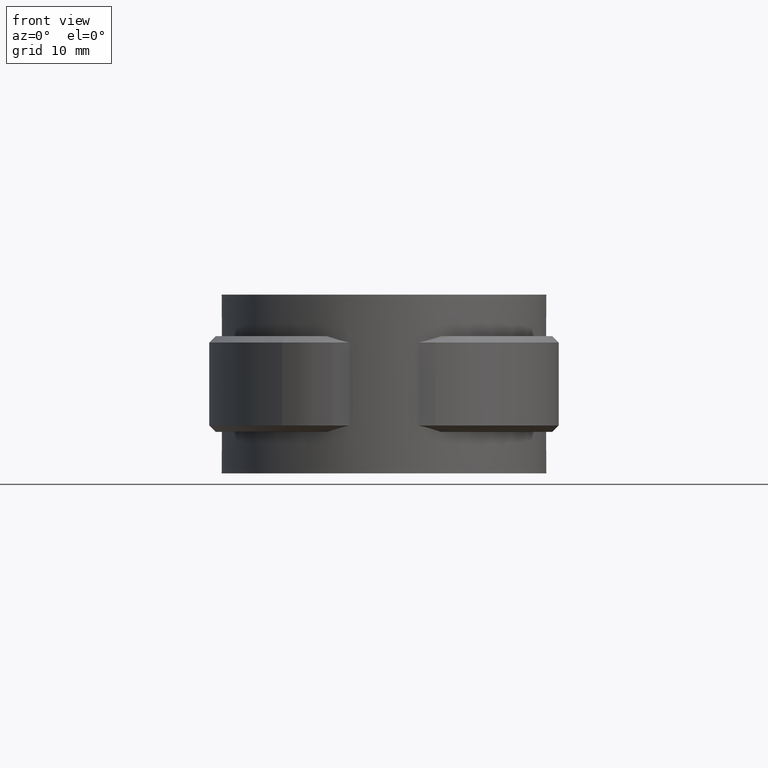
[diagram: clean part render]
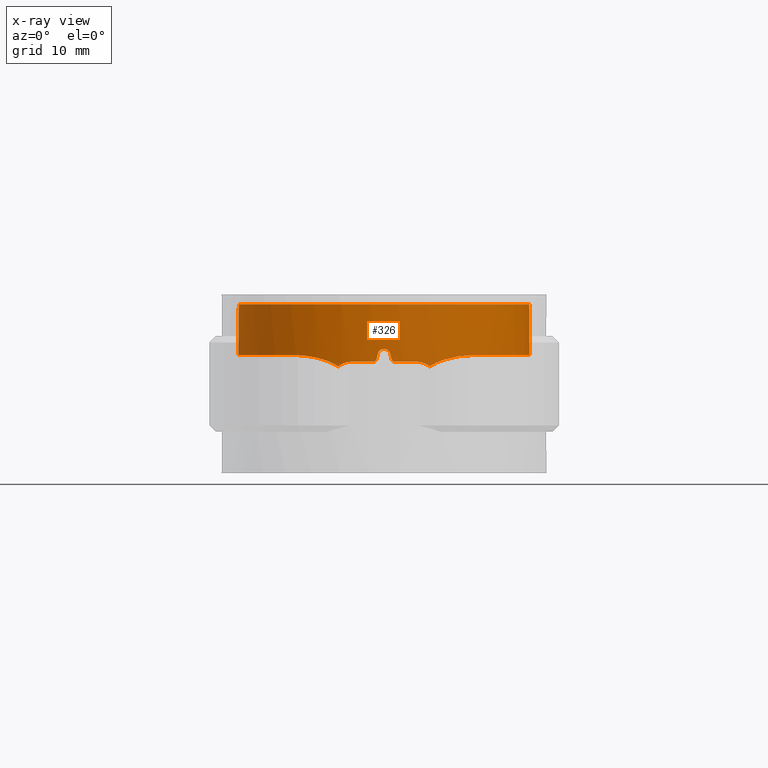
[diagram: x-ray — body ghosted, one internal face saturated and labeled with its STEP entity id]
A machine part, front view, then the same camera in x-ray: the body is ghosted and one INTERNAL B-rep face — a face not visible from any outside direction — is saturated and labeled: STEP entity #326.
In plain terms, the highlighted cylindrical surface (partial cylindrical patch) has radius 22.85 mm, axis along (0, 0, 1).
Its self-contained STEP definition (entity closure, byte-faithful):
#326 = ADVANCED_FACE( '', ( #546 ), #547, .F. );
#546 = FACE_OUTER_BOUND( '', #1200, .T. );
#547 = CYLINDRICAL_SURFACE( '', #1201, 22.8500000000000 );
#1200 = EDGE_LOOP( '', ( #2154, #2155, #2156, #2157, #2158, #2159, #2160, #2161, #2162, #2163, #2164, #2165, #2166, #2167, #2168, #2169 ) );
#1201 = AXIS2_PLACEMENT_3D( '', #2170, #2171, #2172 );
#2154 = ORIENTED_EDGE( '', *, *, #4932, .T. );
#2155 = ORIENTED_EDGE( '', *, *, #4901, .T. );
#2156 = ORIENTED_EDGE( '', *, *, #4905, .T. );
#2157 = ORIENTED_EDGE( '', *, *, #4936, .T. );
#2158 = ORIENTED_EDGE( '', *, *, #4937, .T. );
#2159 = ORIENTED_EDGE( '', *, *, #4938, .T. );
#2160 = ORIENTED_EDGE( '', *, *, #4939, .T. );
#2161 = ORIENTED_EDGE( '', *, *, #4940, .T. );
#2162 = ORIENTED_EDGE( '', *, *, #4941, .T. );
#2163 = ORIENTED_EDGE( '', *, *, #4942, .T. );
#2164 = ORIENTED_EDGE( '', *, *, #4933, .T. );
#2165 = ORIENTED_EDGE( '', *, *, #4925, .T. );
#2166 = ORIENTED_EDGE( '', *, *, #4943, .F. );
#2167 = ORIENTED_EDGE( '', *, *, #4892, .T. );
#2168 = ORIENTED_EDGE( '', *, *, #4944, .T. );
#2169 = ORIENTED_EDGE( '', *, *, #4921, .T. );
#2170 = CARTESIAN_POINT( '', ( 0.000000000000000, 0.000000000000000, 0.000000000000000 ) );
#2171 = DIRECTION( '', ( 0.000000000000000, 0.000000000000000, 1.00000000000000 ) );
#2172 = DIRECTION( '', ( 1.00000000000000, -6.12303176911189E-017, 0.000000000000000 ) );
#4892 = EDGE_CURVE( '', #5478, #5476, #5479, .T. );
#4901 = EDGE_CURVE( '', #5495, #5493, #5496, .T. );
#4905 = EDGE_CURVE( '', #5493, #5500, #5502, .T. );
#4921 = EDGE_CURVE( '', #5530, #5528, #5531, .T. );
#4925 = EDGE_CURVE( '', #5537, #5538, #5539, .T. );
#4932 = EDGE_CURVE( '', #5528, #5495, #5550, .T. );
#4933 = EDGE_CURVE( '', #5551, #5537, #5552, .T. );
#4936 = EDGE_CURVE( '', #5500, #5556, #5557, .T. );
#4937 = EDGE_CURVE( '', #5556, #5558, #5559, .T. );
#4938 = EDGE_CURVE( '', #5558, #5560, #5561, .T. );
#4939 = EDGE_CURVE( '', #5560, #5562, #5563, .T. );
#4940 = EDGE_CURVE( '', #5562, #5564, #5565, .T. );
#4941 = EDGE_CURVE( '', #5564, #5566, #5567, .T. );
#4942 = EDGE_CURVE( '', #5566, #5551, #5568, .T. );
#4943 = EDGE_CURVE( '', #5478, #5538, #5569, .T. );
#4944 = EDGE_CURVE( '', #5476, #5530, #5570, .T. );
#5476 = VERTEX_POINT( '', #6562 );
#5478 = VERTEX_POINT( '', #6564 );
#5479 = CIRCLE( '', #6565, 22.8500000000000 );
#5493 = VERTEX_POINT( '', #6609 );
#5495 = VERTEX_POINT( '', #6612 );
#5496 = B_SPLINE_CURVE_WITH_KNOTS( '', 3, ( #6613, #6614, #6615, #6616, #6617, #6618, #6619, #6620, #6621, #6622 ), .UNSPECIFIED., .F., .F., ( 4, 2, 2, 2, 4 ), ( 0.00877637653112454, 0.00937660491941817, 0.00997683330771180, 0.0105770616960054, 0.0111772900842991 ), .UNSPECIFIED. );
#5500 = VERTEX_POINT( '', #6648 );
#5502 = CIRCLE( '', #6651, 22.8500000000000 );
#5528 = VERTEX_POINT( '', #6915 );
#5530 = VERTEX_POINT( '', #6923 );
#5531 = B_SPLINE_CURVE_WITH_KNOTS( '', 3, ( #6924, #6925, #6926, #6927, #6928, #6929, #6930, #6931, #6932, #6933, #6934, #6935, #6936, #6937, #6938, #6939, #6940, #6941, #6942, #6943, #6944, #6945, #6946, #6947, #6948, #6949, #6950, #6951, #6952, #6953, #6954, #6955, #6956, #6957, #6958, #6959, #6960, #6961, #6962, #6963, #6964, #6965, #6966, #6967 ), .UNSPECIFIED., .F., .F., ( 4, 2, 2, 2, 2, 2, 2, 2, 2, 2, 2, 2, 2, 2, 2, 2, 2, 2, 2, 2, 2, 4 ), ( 6.99289389267470E-018, 0.00317004307811013, 0.00634008615622026, 0.00792510769527532, 0.00951012923433038, 0.0126801723124405, 0.0142651938514956, 0.0158502153905506, 0.0190202584686607, 0.0221903015467709, 0.0237753230858259, 0.0253603446248810, 0.0285303877029911, 0.0301154092420462, 0.0317004307811013, 0.0348704738592114, 0.0380405169373215, 0.0396255384763766, 0.0412105600154316, 0.0443806030935418, 0.0475506461716519, 0.0507206892497620 ), .UNSPECIFIED. );
#5537 = VERTEX_POINT( '', #7003 );
#5538 = VERTEX_POINT( '', #7004 );
#5539 = B_SPLINE_CURVE_WITH_KNOTS( '', 3, ( #7005, #7006, #7007, #7008, #7009, #7010, #7011, #7012, #7013, #7014, #7015, #7016, #7017, #7018, #7019, #7020, #7021, #7022, #7023, #7024, #7025, #7026, #7027, #7028, #7029, #7030, #7031, #7032, #7033, #7034, #7035, #7036, #7037, #7038, #7039, #7040, #7041, #7042, #7043, #7044, #7045, #7046, #7047, #7048 ), .UNSPECIFIED., .F., .F., ( 4, 2, 2, 2, 2, 2, 2, 2, 2, 2, 2, 2, 2, 2, 2, 2, 2, 2, 2, 2, 2, 4 ), ( 9.81307786677359E-018, 0.00317004304630909, 0.00634008609261818, 0.00792510761577273, 0.00951012913892727, 0.0126801721852364, 0.0142651937083909, 0.0158502152315454, 0.0190202582778545, 0.0221903013241636, 0.0237753228473182, 0.0253603443704727, 0.0285303874167818, 0.0301154089399363, 0.0317004304630909, 0.0348704735093999, 0.0380405165557090, 0.0396255380788636, 0.0412105596020181, 0.0443806026483272, 0.0475506456946363, 0.0507206887409454 ), .UNSPECIFIED. );
#5550 = B_SPLINE_CURVE_WITH_KNOTS( '', 3, ( #7147, #7148, #7149, #7150, #7151, #7152, #7153, #7154, #7155, #7156 ), .UNSPECIFIED., .F., .F., ( 4, 2, 2, 2, 4 ), ( 4.90653893338680E-018, 0.00193685903663415, 0.00387371807326829, 0.00581057710990243, 0.00774743614653658 ), .UNSPECIFIED. );
#5551 = VERTEX_POINT( '', #7157 );
#5552 = B_SPLINE_CURVE_WITH_KNOTS( '', 3, ( #7158, #7159, #7160, #7161, #7162, #7163, #7164, #7165, #7166, #7167 ), .UNSPECIFIED., .F., .F., ( 4, 2, 2, 2, 4 ), ( 1.22770241732600E-005, 0.00193683946452196, 0.00386140190487065, 0.00578596434521935, 0.00771052678556805 ), .UNSPECIFIED. );
#5556 = VERTEX_POINT( '', #7197 );
#5557 = B_SPLINE_CURVE_WITH_KNOTS( '', 3, ( #7198, #7199, #7200, #7201, #7202, #7203 ), .UNSPECIFIED., .F., .F., ( 4, 2, 4 ), ( 8.20849171219253E-018, 0.000336159592444283, 0.000672319184888557 ), .UNSPECIFIED. );
#5558 = VERTEX_POINT( '', #7204 );
#5559 = ELLIPSE( '', #7205, 104.094497545428, 22.8500000000000 );
#5560 = VERTEX_POINT( '', #7206 );
#5561 = B_SPLINE_CURVE_WITH_KNOTS( '', 3, ( #7207, #7208, #7209, #7210, #7211, #7212, #7213, #7214, #7215, #7216 ), .UNSPECIFIED., .F., .F., ( 4, 2, 2, 2, 4 ), ( 0.000000000000000, 0.000671637327123140, 0.00134327465424628, 0.00201491198136942, 0.00268654930849256 ), .UNSPECIFIED. );
#5562 = VERTEX_POINT( '', #7217 );
#5563 = ELLIPSE( '', #7218, 104.094550646447, 22.8500000000000 );
#5564 = VERTEX_POINT( '', #7219 );
#5565 = B_SPLINE_CURVE_WITH_KNOTS( '', 3, ( #7220, #7221, #7222, #7223, #7224, #7225 ), .UNSPECIFIED., .F., .F., ( 4, 2, 4 ), ( 4.33680868994202E-019, 0.000336166991338131, 0.000672333982676262 ), .UNSPECIFIED. );
#5566 = VERTEX_POINT( '', #7226 );
#5567 = CIRCLE( '', #7227, 22.8500000000000 );
#5568 = B_SPLINE_CURVE_WITH_KNOTS( '', 3, ( #7228, #7229, #7230, #7231, #7232, #7233 ), .UNSPECIFIED., .F., .F., ( 4, 2, 4 ), ( 3.46944695195361E-018, 0.00120286822902714, 0.00240573645805428 ), .UNSPECIFIED. );
#5569 = LINE( '', #7234, #7235 );
#5570 = LINE( '', #7236, #7237 );
#6562 = CARTESIAN_POINT( '', ( 5.97686116700199, 22.0544696284083, 0.000000000000000 ) );
#6564 = CARTESIAN_POINT( '', ( -5.97686116700201, 22.0544696284083, 0.000000000000000 ) );
#6565 = AXIS2_PLACEMENT_3D( '', #10147, #10148, #10149 );
#6609 = CARTESIAN_POINT( '', ( 5.00000000000000, -22.2962440783196, -9.00000000000000 ) );
#6612 = CARTESIAN_POINT( '', ( 7.17024469518741, -21.6958542355708, -9.75408704380943 ) );
#6613 = CARTESIAN_POINT( '', ( 7.17024469519023, -21.6958542355699, -9.75408704380518 ) );
#6614 = CARTESIAN_POINT( '', ( 7.01796001824560, -21.7461826709090, -9.63372816223458 ) );
#6615 = CARTESIAN_POINT( '', ( 6.85645411589327, -21.7977869176170, -9.52650941623307 ) );
#6616 = CARTESIAN_POINT( '', ( 6.51445896775813, -21.9024268497027, -9.33859490556102 ) );
#6617 = CARTESIAN_POINT( '', ( 6.33514685373400, -21.9550557524283, -9.25887470472623 ) );
#6618 = CARTESIAN_POINT( '', ( 5.96938883735207, -22.0573107077700, -9.13135107458249 ) );
#6619 = CARTESIAN_POINT( '', ( 5.78162313718466, -22.1073494578542, -9.08278654924922 ) );
#6620 = CARTESIAN_POINT( '', ( 5.39588101789662, -22.2046511837682, -9.01696099415415 ) );
#6621 = CARTESIAN_POINT( '', ( 5.19812709409455, -22.2518134797401, -8.99999999999996 ) );
#6622 = CARTESIAN_POINT( '', ( 5.00000000000000, -22.2962440783196, -8.99999999999996 ) );
#6648 = CARTESIAN_POINT( '', ( 1.64999999999995, -22.7903488345396, -9.00000000000000 ) );
#6651 = AXIS2_PLACEMENT_3D( '', #10157, #10158, #10159 );
#6915 = CARTESIAN_POINT( '', ( 13.7451875260167, -18.2535563623815, -7.99627160259138 ) );
#6923 = CARTESIAN_POINT( '', ( 5.97686116700199, 22.0544696284083, -7.99806293628720 ) );
#6924 = CARTESIAN_POINT( '', ( 5.97686116700199, 22.0544696284083, -7.99806293628719 ) );
#6925 = CARTESIAN_POINT( '', ( 7.01143548196948, 21.7740953028547, -7.99988755278499 ) );
#6926 = CARTESIAN_POINT( '', ( 8.01404762350001, 21.4246368353251, -8.00230956324210 ) );
#6927 = CARTESIAN_POINT( '', ( 9.95795472894794, 20.5931823779988, -8.00493905481669 ) );
#6928 = CARTESIAN_POINT( '', ( 10.8992422127147, 20.1111702307964, -8.00515454280294 ) );
#6929 = CARTESIAN_POINT( '', ( 12.2643926408483, 19.2870347738314, -8.00363431056714 ) );
#6930 = CARTESIAN_POINT( '', ( 12.7128878064341, 18.9945035227543, -8.00284112949908 ) );
#6931 = CARTESIAN_POINT( '', ( 13.5878610445616, 18.3787571040207, -8.00096519471322 ) );
#6932 = CARTESIAN_POINT( '', ( 14.0121140876056, 18.0572548725910, -7.99989040825879 ) );
#6933 = CARTESIAN_POINT( '', ( 15.2461850436421, 17.0529035816828, -7.99695436852238 ) );
#6934 = CARTESIAN_POINT( '', ( 16.0174960287352, 16.3303963988733, -7.99576079257590 ) );
#6935 = CARTESIAN_POINT( '', ( 17.0979388525818, 15.1678234558254, -7.99686273755623 ) );
#6936 = CARTESIAN_POINT( '', ( 17.4452867950226, 14.7671167835252, -7.99752471479612 ) );
#6937 = CARTESIAN_POINT( '', ( 18.1139169837869, 13.9388586678873, -7.99893911913194 ) );
#6938 = CARTESIAN_POINT( '', ( 18.4363869040529, 13.5095277098120, -7.99969322085147 ) );
#6939 = CARTESIAN_POINT( '', ( 19.3528943041517, 12.1954412025470, -8.00152579516512 ) );
#6940 = CARTESIAN_POINT( '', ( 19.8965015602484, 11.2857590722033, -8.00208610889801 ) );
#6941 = CARTESIAN_POINT( '', ( 20.8531823110765, 9.40127223697905, -8.00120365913698 ) );
#6942 = CARTESIAN_POINT( '', ( 21.2662520276613, 8.42646564670237, -7.99976228330781 ) );
#6943 = CARTESIAN_POINT( '', ( 21.7853527964981, 6.91411441776020, -7.99764423764790 ) );
#6944 = CARTESIAN_POINT( '', ( 21.9419239672955, 6.39990400198894, -7.99696693858724 ) );
#6945 = CARTESIAN_POINT( '', ( 22.2165583847864, 5.36948155380273, -7.99620273547804 ) );
#6946 = CARTESIAN_POINT( '', ( 22.3352128396471, 4.85191773757434, -7.99618901026058 ) );
#6947 = CARTESIAN_POINT( '', ( 22.6363537652718, 3.29231552430281, -7.99730974496166 ) );
#6948 = CARTESIAN_POINT( '', ( 22.7642766476596, 2.24339873368634, -7.99919040340763 ) );
#6949 = CARTESIAN_POINT( '', ( 22.8467180456463, 0.656225445339574, -8.00111405153714 ) );
#6950 = CARTESIAN_POINT( '', ( 22.8558934501877, 0.124859869719755, -8.00162434645790 ) );
#6951 = CARTESIAN_POINT( '', ( 22.8367899002396, -0.942593467893980, -8.00218138229480 ) );
#6952 = CARTESIAN_POINT( '', ( 22.8082982044997, -1.47902190764850, -8.00222512101892 ) );
#6953 = CARTESIAN_POINT( '', ( 22.6678380924190, -3.07009891870487, -8.00163221456187 ) );
#6954 = CARTESIAN_POINT( '', ( 22.5012258872981, -4.11511386099821, -8.00020197076185 ) );
#6955 = CARTESIAN_POINT( '', ( 22.0253389225093, -6.17444522761300, -7.99725528632868 ) );
#6956 = CARTESIAN_POINT( '', ( 21.7160731843294, -7.18876363629052, -7.99579791686863 ) );
#6957 = CARTESIAN_POINT( '', ( 21.1413121594365, -8.68638788384819, -7.99671454935107 ) );
#6958 = CARTESIAN_POINT( '', ( 20.9317676009025, -9.17966926231612, -7.99743481233078 ) );
#6959 = CARTESIAN_POINT( '', ( 20.4821229394220, -10.1433654453592, -7.99905703644062 ) );
#6960 = CARTESIAN_POINT( '', ( 20.2413902491186, -10.6154738524167, -7.99996020726915 ) );
#6961 = CARTESIAN_POINT( '', ( 19.4722333125456, -12.0030532422216, -8.00228544469425 ) );
#6962 = CARTESIAN_POINT( '', ( 18.8970748792681, -12.8899160043015, -8.00322899268585 ) );
#6963 = CARTESIAN_POINT( '', ( 17.6206061025088, -14.5864188261150, -8.00266976111400 ) );
#6964 = CARTESIAN_POINT( '', ( 16.9148082427623, -15.3996729535128, -8.00114093309447 ) );
#6965 = CARTESIAN_POINT( '', ( 15.4063552298102, -16.9087221130833, -7.99769043588947 ) );
#6966 = CARTESIAN_POINT( '', ( 14.6014655284411, -17.6087668493645, -7.99577809227567 ) );
#6967 = CARTESIAN_POINT( '', ( 13.7451875260167, -18.2535563623814, -7.99627160259135 ) );
#7003 = CARTESIAN_POINT( '', ( -13.7451875260167, -18.2535563623815, -7.99627160259138 ) );
#7004 = CARTESIAN_POINT( '', ( -5.97686116700199, 22.0544696284083, -7.99806293628720 ) );
#7005 = CARTESIAN_POINT( '', ( -13.7451875260167, -18.2535563623815, -7.99627160259142 ) );
#7006 = CARTESIAN_POINT( '', ( -14.6014626590747, -17.6087690100383, -7.99577809392949 ) );
#7007 = CARTESIAN_POINT( '', ( -15.4023885782134, -16.9117251612029, -7.99768192258079 ) );
#7008 = CARTESIAN_POINT( '', ( -16.8980576635275, -15.4173820424365, -8.00110206449429 ) );
#7009 = CARTESIAN_POINT( '', ( -17.5927878591592, -14.6200705381405, -8.00262879595024 ) );
#7010 = CARTESIAN_POINT( '', ( -18.5538737595713, -13.3476142180274, -8.00309218426568 ) );
#7011 = CARTESIAN_POINT( '', ( -18.8615277240534, -12.9093552327832, -8.00296404397960 ) );
#7012 = CARTESIAN_POINT( '', ( -19.4449927579841, -12.0125325079005, -8.00218297237273 ) );
#7013 = CARTESIAN_POINT( '', ( -19.7193742678155, -11.5563866712114, -8.00153467859180 ) );
#7014 = CARTESIAN_POINT( '', ( -20.4917933719759, -10.1653372809368, -7.99921031318955 ) );
#7015 = CARTESIAN_POINT( '', ( -20.9393430537976, -9.20792778083379, -7.99707160100255 ) );
#7016 = CARTESIAN_POINT( '', ( -21.5103351387830, -7.72708629450049, -7.99610943199218 ) );
#7017 = CARTESIAN_POINT( '', ( -21.6838838863340, -7.22599115546843, -7.99628155030869 ) );
#7018 = CARTESIAN_POINT( '', ( -21.9968060675225, -6.20856596991012, -7.99721535703736 ) );
#7019 = CARTESIAN_POINT( '', ( -22.1366207863939, -5.69014253708242, -7.99794865544021 ) );
#7020 = CARTESIAN_POINT( '', ( -22.4991120053981, -4.12956010977327, -8.00018055878470 ) );
#7021 = CARTESIAN_POINT( '', ( -22.6657057876294, -3.08300421862503, -8.00161499496216 ) );
#7022 = CARTESIAN_POINT( '', ( -22.8535063778009, -0.977946881608828, -8.00242400815245 ) );
#7023 = CARTESIAN_POINT( '', ( -22.8747089415520, 0.0805549129978751, -8.00179842017109 ) );
#7024 = CARTESIAN_POINT( '', ( -22.7945728596216, 1.67750490642551, -7.99988256730917 ) );
#7025 = CARTESIAN_POINT( '', ( -22.7488263826334, 2.21307448449684, -7.99909993040698 ) );
#7026 = CARTESIAN_POINT( '', ( -22.6208392431182, 3.27176288843334, -7.99763577880348 ) );
#7027 = CARTESIAN_POINT( '', ( -22.5386451866891, 3.79635526330947, -7.99695380675901 ) );
#7028 = CARTESIAN_POINT( '', ( -22.2385985378765, 5.35617359857219, -7.99581439911110 ) );
#7029 = CARTESIAN_POINT( '', ( -21.9675338496991, 6.37750653398686, -7.99689788653804 ) );
#7030 = CARTESIAN_POINT( '', ( -21.4542049025115, 7.88164007413647, -7.99899681372121 ) );
#7031 = CARTESIAN_POINT( '', ( -21.2652436323218, 8.37835717821459, -7.99973674000940 ) );
#7032 = CARTESIAN_POINT( '', ( -20.8507946196637, 9.36225504226127, -8.00094347261856 ) );
#7033 = CARTESIAN_POINT( '', ( -20.6249821364067, 9.84967442949807, -8.00140766923122 ) );
#7034 = CARTESIAN_POINT( '', ( -19.9032645714036, 11.2745934462193, -8.00209245863423 ) );
#7035 = CARTESIAN_POINT( '', ( -19.3602098795956, 12.1828406030148, -8.00153377176460 ) );
#7036 = CARTESIAN_POINT( '', ( -18.1530659394078, 13.9178133605812, -7.99913320625502 ) );
#7037 = CARTESIAN_POINT( '', ( -17.4889843485493, 14.7445441182419, -7.99729036923796 ) );
#7038 = CARTESIAN_POINT( '', ( -16.3988068278135, 15.9212922943994, -7.99613600533814 ) );
#7039 = CARTESIAN_POINT( '', ( -16.0209440561239, 16.3013672571772, -7.99608691237625 ) );
#7040 = CARTESIAN_POINT( '', ( -15.2453517644984, 17.0289304561245, -7.99702610753498 ) );
#7041 = CARTESIAN_POINT( '', ( -14.8464049878327, 17.3777565423573, -7.99790707172347 ) );
#7042 = CARTESIAN_POINT( '', ( -13.6166535096742, 18.3800952454065, -8.00082820811167 ) );
#7043 = CARTESIAN_POINT( '', ( -12.7530950942392, 18.9896796107435, -8.00305973268800 ) );
#7044 = CARTESIAN_POINT( '', ( -10.9375626850127, 20.0902734852668, -8.00514104661395 ) );
#7045 = CARTESIAN_POINT( '', ( -9.98007747159388, 20.5829714988920, -8.00496024213077 ) );
#7046 = CARTESIAN_POINT( '', ( -8.01883971137840, 21.4233254128867, -8.00232466419275 ) );
#7047 = CARTESIAN_POINT( '', ( -7.01143530155086, 21.7740953517490, -7.99988755246681 ) );
#7048 = CARTESIAN_POINT( '', ( -5.97686116700199, 22.0544696284083, -7.99806293628720 ) );
#7147 = CARTESIAN_POINT( '', ( 13.7451875260167, -18.2535563623814, -7.99627160259138 ) );
#7148 = CARTESIAN_POINT( '', ( 13.2277917529550, -18.6431627374196, -8.00648650956823 ) );
#7149 = CARTESIAN_POINT( '', ( 12.6966610756508, -19.0086940085891, -8.04288191382708 ) );
#7150 = CARTESIAN_POINT( '', ( 11.6080044819275, -19.6923813270429, -8.17431115934381 ) );
#7151 = CARTESIAN_POINT( '', ( 11.0500078105296, -20.0104897910928, -8.26950871493945 ) );
#7152 = CARTESIAN_POINT( '', ( 9.92639298903797, -20.5909955203573, -8.53304212090702 ) );
#7153 = CARTESIAN_POINT( '', ( 9.35588948381040, -20.8555785453974, -8.70238079946328 ) );
#7154 = CARTESIAN_POINT( '', ( 8.24024761362309, -21.3210258609358, -9.13870976108172 ) );
#7155 = CARTESIAN_POINT( '', ( 7.69167861809985, -21.5235259751088, -9.40348664637710 ) );
#7156 = CARTESIAN_POINT( '', ( 7.17024469518742, -21.6958542355708, -9.75408704380943 ) );
#7157 = CARTESIAN_POINT( '', ( -7.17024469519212, -21.6958542355694, -9.75408704380659 ) );
#7158 = CARTESIAN_POINT( '', ( -7.17024469519197, -21.6958542355693, -9.75408704380636 ) );
#7159 = CARTESIAN_POINT( '', ( -7.69174031474826, -21.5235055850350, -9.40344516294426 ) );
#7160 = CARTESIAN_POINT( '', ( -8.24029966391812, -21.3210038117202, -9.13869010300733 ) );
#7161 = CARTESIAN_POINT( '', ( -9.35581593698353, -20.8556095629891, -8.70240886487221 ) );
#7162 = CARTESIAN_POINT( '', ( -9.92636718308291, -20.5910013747996, -8.53305730762234 ) );
#7163 = CARTESIAN_POINT( '', ( -11.0496069818502, -20.0107043508477, -8.26959359487835 ) );
#7164 = CARTESIAN_POINT( '', ( -11.6070435510115, -19.6929623613240, -8.17444699709237 ) );
#7165 = CARTESIAN_POINT( '', ( -12.6964791998723, -19.0088306449086, -8.04288406344231 ) );
#7166 = CARTESIAN_POINT( '', ( -13.2277881242195, -18.6431654699090, -8.00648658121005 ) );
#7167 = CARTESIAN_POINT( '', ( -13.7451875260167, -18.2535563623814, -7.99627160259135 ) );
#7197 = CARTESIAN_POINT( '', ( 1.16219499999999, -22.8204251227267, -8.60975599999999 ) );
#7198 = CARTESIAN_POINT( '', ( 1.64999999999995, -22.7903488345396, -8.99999999999995 ) );
#7199 = CARTESIAN_POINT( '', ( 1.53663326388832, -22.7985564805016, -9.00000000048652 ) );
#7200 = CARTESIAN_POINT( '', ( 1.42653054457525, -22.8056002252954, -8.96146270835897 ) );
#7201 = CARTESIAN_POINT( '', ( 1.24917237601912, -22.8160022660762, -8.81972438130845 ) );
#7202 = CARTESIAN_POINT( '', ( 1.18714543685195, -22.8191544508263, -8.72064683267554 ) );
#7203 = CARTESIAN_POINT( '', ( 1.16219499999999, -22.8204251227267, -8.60975599999999 ) );
#7204 = CARTESIAN_POINT( '', ( 0.975609757981813, -22.8291630508026, -7.78048781325256 ) );
#7205 = AXIS2_PLACEMENT_3D( '', #10160, #10161, #10162 );
#7206 = CARTESIAN_POINT( '', ( -0.975610000000027, -22.8291630404599, -7.78048800000004 ) );
#7207 = CARTESIAN_POINT( '', ( 0.975609757981815, -22.8291630508026, -7.78048781325255 ) );
#7208 = CARTESIAN_POINT( '', ( 0.925759611057571, -22.8312934087867, -7.55893169483417 ) );
#7209 = CARTESIAN_POINT( '', ( 0.802000848113016, -22.8366098643602, -7.36098155301806 ) );
#7210 = CARTESIAN_POINT( '', ( 0.447419710234552, -22.8463076023295, -7.07730528269426 ) );
#7211 = CARTESIAN_POINT( '', ( 0.227103399425461, -22.8500000104525, -6.99999978043801 ) );
#7212 = CARTESIAN_POINT( '', ( -0.227105502769266, -22.8499999895475, -7.00000021269580 ) );
#7213 = CARTESIAN_POINT( '', ( -0.447456633074006, -22.8463067278190, -7.07732824922196 ) );
#7214 = CARTESIAN_POINT( '', ( -0.801998773867362, -22.8366097857538, -7.36098614709214 ) );
#7215 = CARTESIAN_POINT( '', ( -0.925759891921149, -22.8312933973134, -7.55893185619929 ) );
#7216 = CARTESIAN_POINT( '', ( -0.975610000000027, -22.8291630404599, -7.78048800000004 ) );
#7217 = CARTESIAN_POINT( '', ( -1.16219512100914, -22.8204251165639, -8.60975609337373 ) );
#7218 = AXIS2_PLACEMENT_3D( '', #10163, #10164, #10165 );
#7219 = CARTESIAN_POINT( '', ( -1.65000000000003, -22.7903488345396, -9.00000000000000 ) );
#7220 = CARTESIAN_POINT( '', ( -1.16219512100916, -22.8204251165639, -8.60975609337372 ) );
#7221 = CARTESIAN_POINT( '', ( -1.18714554844780, -22.8191544450104, -8.72064688643459 ) );
#7222 = CARTESIAN_POINT( '', ( -1.24916474685743, -22.8160027002550, -8.81971695351357 ) );
#7223 = CARTESIAN_POINT( '', ( -1.42653137035029, -22.8056001901341, -8.96146462712579 ) );
#7224 = CARTESIAN_POINT( '', ( -1.53663329736968, -22.7985564780776, -8.99999999999994 ) );
#7225 = CARTESIAN_POINT( '', ( -1.65000000000003, -22.7903488345396, -8.99999999999994 ) );
#7226 = CARTESIAN_POINT( '', ( -5.00000000000005, -22.2962440783196, -9.00000000000000 ) );
#7227 = AXIS2_PLACEMENT_3D( '', #10166, #10167, #10168 );
#7228 = CARTESIAN_POINT( '', ( -5.00000000000005, -22.2962440783196, -8.99999999999997 ) );
#7229 = CARTESIAN_POINT( '', ( -5.39698853567081, -22.2072182015225, -8.99999999999997 ) );
#7230 = CARTESIAN_POINT( '', ( -5.78043815525076, -22.1101147685204, -9.06561690495290 ) );
#7231 = CARTESIAN_POINT( '', ( -6.52180220347940, -21.9028933331310, -9.32380904050121 ) );
#7232 = CARTESIAN_POINT( '', ( -6.86244019934733, -21.7975802856028, -9.51081237162271 ) );
#7233 = CARTESIAN_POINT( '', ( -7.17024469519209, -21.6958542355693, -9.75408704380656 ) );
#7234 = CARTESIAN_POINT( '', ( -5.97686116700201, 22.0544696284083, 0.000000000000000 ) );
#7235 = VECTOR( '', #10169, 1000.00000000000 );
#7236 = CARTESIAN_POINT( '', ( 5.97686116700199, 22.0544696284083, 0.000000000000000 ) );
#7237 = VECTOR( '', #10170, 1000.00000000000 );
#10147 = CARTESIAN_POINT( '', ( 0.000000000000000, 0.000000000000000, 0.000000000000000 ) );
#10148 = DIRECTION( '', ( 0.000000000000000, 0.000000000000000, 1.00000000000000 ) );
#10149 = DIRECTION( '', ( 1.00000000000000, -6.12303176911189E-017, 0.000000000000000 ) );
#10157 = CARTESIAN_POINT( '', ( 0.000000000000000, 0.000000000000000, -9.00000000000000 ) );
#10158 = DIRECTION( '', ( 6.12303176911189E-017, 0.000000000000000, -1.00000000000000 ) );
#10159 = DIRECTION( '', ( -1.00000000000000, 0.000000000000000, -6.12303176911189E-017 ) );
#10160 = CARTESIAN_POINT( '', ( 0.000000000000000, 0.000000000000000, -3.44444212055029 ) );
#10161 = DIRECTION( '', ( -0.975609781292647, 0.000000000000000, -0.219512083143762 ) );
#10162 = DIRECTION( '', ( 0.219512083143762, 0.000000000000000, -0.975609781292647 ) );
#10163 = CARTESIAN_POINT( '', ( 0.000000000000000, 0.000000000000000, -3.44443890776446 ) );
#10164 = DIRECTION( '', ( 0.975609806487711, 0.000000000000000, -0.219511971165610 ) );
#10165 = DIRECTION( '', ( -0.219511971165610, 0.000000000000000, -0.975609806487711 ) );
#10166 = CARTESIAN_POINT( '', ( 0.000000000000000, 0.000000000000000, -9.00000000000000 ) );
#10167 = DIRECTION( '', ( 6.12303176911189E-017, 0.000000000000000, -1.00000000000000 ) );
#10168 = DIRECTION( '', ( -1.00000000000000, 0.000000000000000, -6.12303176911189E-017 ) );
#10169 = DIRECTION( '', ( 0.000000000000000, 0.000000000000000, -1.00000000000000 ) );
#10170 = DIRECTION( '', ( 0.000000000000000, 0.000000000000000, -1.00000000000000 ) );